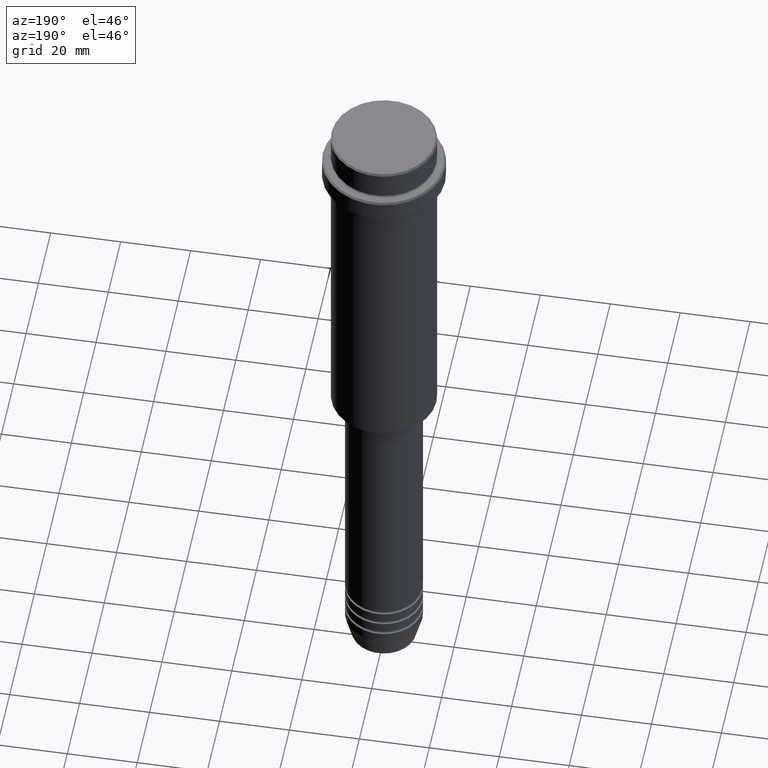
[diagram: clean part render]
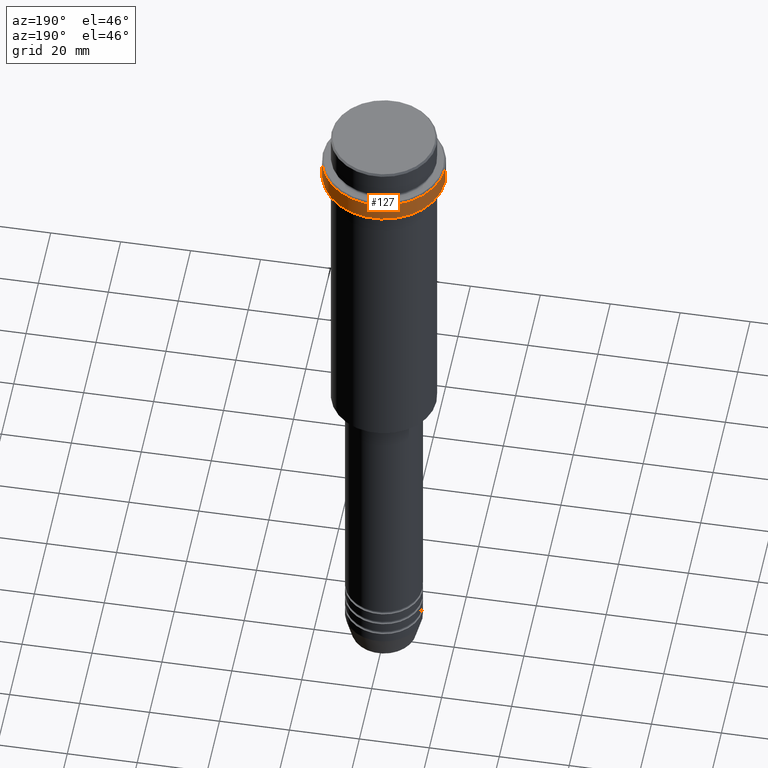
[diagram: same view with one face highlighted and labeled with its STEP entity id]
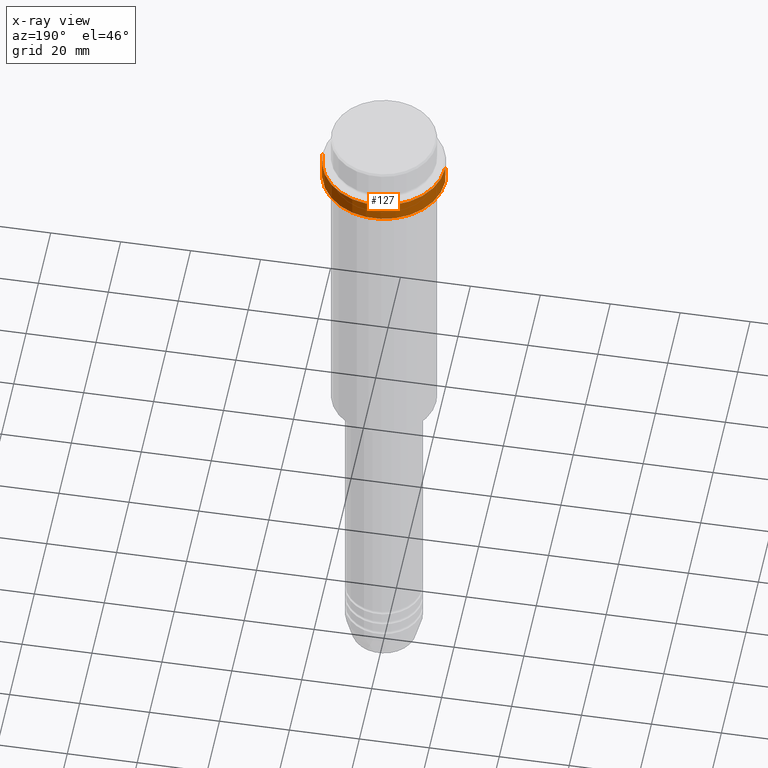
[diagram: x-ray of the same camera — body ghosted, the highlighted face saturated]
A machine part, auxiliary view. The second image highlights one B-rep face of the part: STEP entity #127.
The next image is the same camera in x-ray: the body ghosted, the highlighted face saturated — about 0% of this face is hidden behind the body in this view.
In plain terms, the highlighted cylindrical surface (partial cylindrical patch) has radius 17.5 mm, axis along (-0, -0, 1).
Its self-contained STEP definition (entity closure, byte-faithful):
#23 = DIRECTION ( 'NONE',  ( 1.000000000000000000, 0.000000000000000000, 0.000000000000000000 ) ) ;
#51 = EDGE_CURVE ( 'NONE', #426, #199, #133, .T. ) ;
#87 = AXIS2_PLACEMENT_3D ( 'NONE', #591, #808, #493 ) ;
#123 = CARTESIAN_POINT ( 'NONE',  ( 0.000000000000000000, 0.000000000000000000, 0.000000000000000000 ) ) ;
#127 = ADVANCED_FACE ( 'NONE', ( #1007 ), #260, .T. ) ;
#133 = CIRCLE ( 'NONE', #524, 17.50000000000000000 ) ;
#149 = CARTESIAN_POINT ( 'NONE',  ( 17.50000000000000000, 0.000000000000000000, 0.000000000000000000 ) ) ;
#199 = VERTEX_POINT ( 'NONE', #1352 ) ;
#216 = LINE ( 'NONE', #546, #842 ) ;
#219 = DIRECTION ( 'NONE',  ( -0.000000000000000000, -0.000000000000000000, 1.000000000000000000 ) ) ;
#260 = CYLINDRICAL_SURFACE ( 'NONE', #548, 17.50000000000000000 ) ;
#344 = ORIENTED_EDGE ( 'NONE', *, *, #51, .T. ) ;
#417 = ORIENTED_EDGE ( 'NONE', *, *, #923, .T. ) ;
#424 = VERTEX_POINT ( 'NONE', #972 ) ;
#426 = VERTEX_POINT ( 'NONE', #1398 ) ;
#452 = CARTESIAN_POINT ( 'NONE',  ( 0.000000000000000000, 0.000000000000000000, -15.00000000000000000 ) ) ;
#493 = DIRECTION ( 'NONE',  ( 1.000000000000000000, 0.000000000000000000, 0.000000000000000000 ) ) ;
#524 = AXIS2_PLACEMENT_3D ( 'NONE', #452, #219, #857 ) ;
#546 = CARTESIAN_POINT ( 'NONE',  ( -17.50000000000000000, 2.143131898507868248E-15, 0.000000000000000000 ) ) ;
#548 = AXIS2_PLACEMENT_3D ( 'NONE', #123, #582, #23 ) ;
#568 = EDGE_CURVE ( 'NONE', #426, #1375, #1215, .T. ) ;
#582 = DIRECTION ( 'NONE',  ( -0.000000000000000000, -0.000000000000000000, 1.000000000000000000 ) ) ;
#591 = CARTESIAN_POINT ( 'NONE',  ( 0.000000000000000000, 0.000000000000000000, -9.500000000000000000 ) ) ;
#783 = EDGE_LOOP ( 'NONE', ( #344, #417, #789, #878 ) ) ;
#789 = ORIENTED_EDGE ( 'NONE', *, *, #1104, .T. ) ;
#808 = DIRECTION ( 'NONE',  ( 0.000000000000000000, 0.000000000000000000, -1.000000000000000000 ) ) ;
#823 = CIRCLE ( 'NONE', #87, 17.50000000000000000 ) ;
#842 = VECTOR ( 'NONE', #977, 1000.000000000000000 ) ;
#857 = DIRECTION ( 'NONE',  ( 1.000000000000000000, 0.000000000000000000, 0.000000000000000000 ) ) ;
#878 = ORIENTED_EDGE ( 'NONE', *, *, #568, .F. ) ;
#916 = VECTOR ( 'NONE', #1014, 1000.000000000000000 ) ;
#923 = EDGE_CURVE ( 'NONE', #199, #424, #216, .T. ) ;
#972 = CARTESIAN_POINT ( 'NONE',  ( -17.50000000000000000, 2.143131898507868248E-15, -9.500000000000000000 ) ) ;
#977 = DIRECTION ( 'NONE',  ( -0.000000000000000000, -0.000000000000000000, 1.000000000000000000 ) ) ;
#1007 = FACE_OUTER_BOUND ( 'NONE', #783, .T. ) ;
#1014 = DIRECTION ( 'NONE',  ( -0.000000000000000000, -0.000000000000000000, 1.000000000000000000 ) ) ;
#1104 = EDGE_CURVE ( 'NONE', #424, #1375, #823, .T. ) ;
#1215 = LINE ( 'NONE', #149, #916 ) ;
#1293 = CARTESIAN_POINT ( 'NONE',  ( 17.50000000000000000, 0.000000000000000000, -9.500000000000000000 ) ) ;
#1352 = CARTESIAN_POINT ( 'NONE',  ( -17.50000000000000000, 2.143131898507868248E-15, -15.00000000000000000 ) ) ;
#1375 = VERTEX_POINT ( 'NONE', #1293 ) ;
#1398 = CARTESIAN_POINT ( 'NONE',  ( 17.50000000000000000, 0.000000000000000000, -15.00000000000000000 ) ) ;